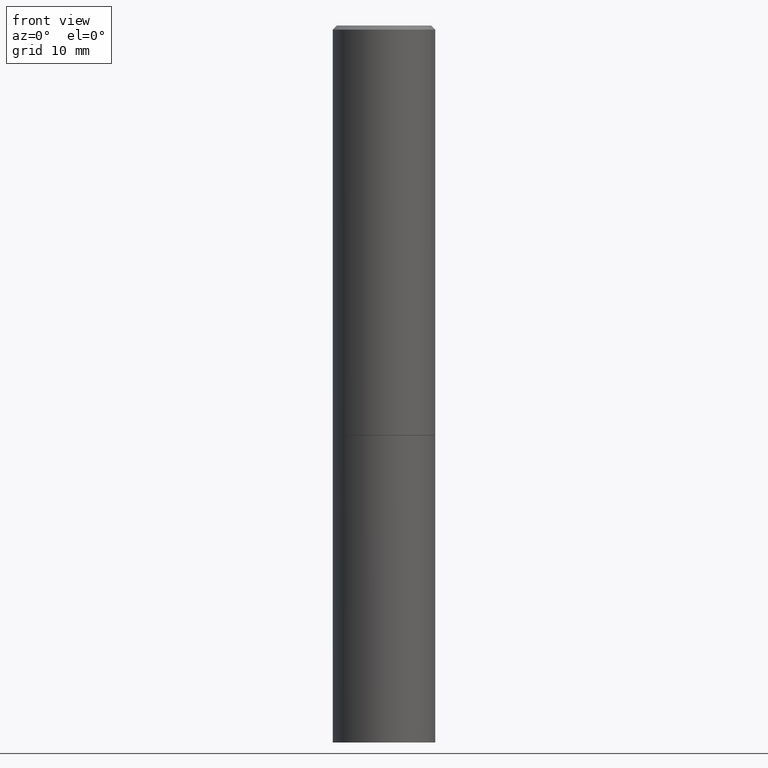
[diagram: clean part render]
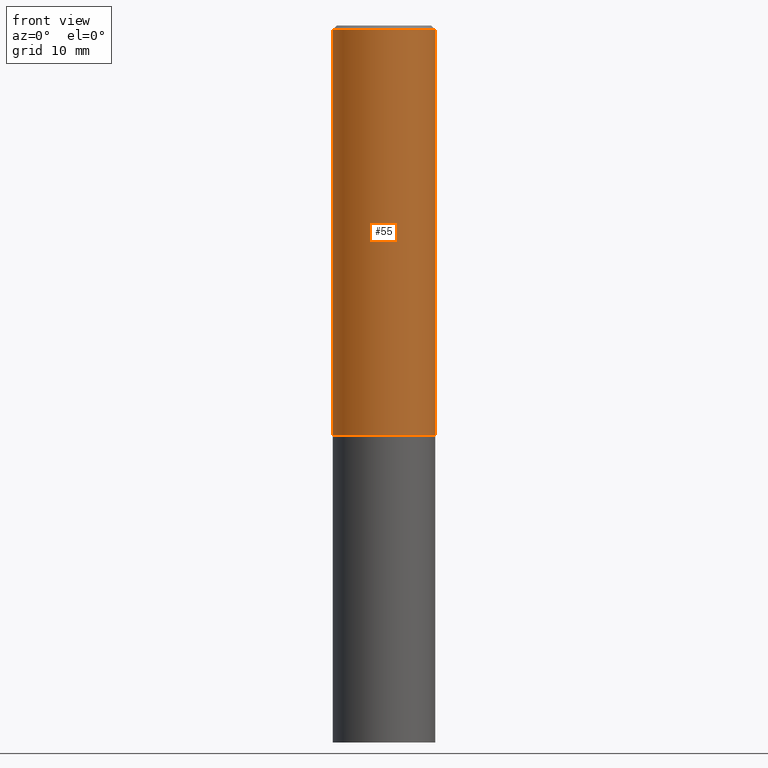
[diagram: same view with one face highlighted and labeled with its STEP entity id]
A machine part, front view. The second image highlights one B-rep face of the part: STEP entity #55.
In plain terms, the highlighted cylindrical surface (partial cylindrical patch) has radius 6.35 mm, axis along (-0, 0, 1).
Its self-contained STEP definition (entity closure, byte-faithful):
#6 = AXIS2_PLACEMENT_3D ( 'NONE', #157, #129, #299 ) ;
#17 = VERTEX_POINT ( 'NONE', #180 ) ;
#39 = DIRECTION ( 'NONE',  ( 1.000000000000000000, -6.982962677686266711E-15, 4.876176775795935793E-29 ) ) ;
#45 = EDGE_CURVE ( 'NONE', #136, #221, #117, .T. ) ;
#47 = ORIENTED_EDGE ( 'NONE', *, *, #105, .T. ) ;
#55 = ADVANCED_FACE ( 'NONE', ( #340 ), #88, .T. ) ;
#68 = VECTOR ( 'NONE', #259, 39.37007874015748143 ) ;
#78 = DIRECTION ( 'NONE',  ( -2.445468806185136877E-29, 3.491481338843145188E-15, 1.000000000000000000 ) ) ;
#81 = AXIS2_PLACEMENT_3D ( 'NONE', #284, #278, #229 ) ;
#88 = CYLINDRICAL_SURFACE ( 'NONE', #264, 0.2499999999999998890 ) ;
#101 = LINE ( 'NONE', #223, #319 ) ;
#105 = EDGE_CURVE ( 'NONE', #17, #136, #336, .T. ) ;
#107 = ORIENTED_EDGE ( 'NONE', *, *, #251, .F. ) ;
#117 = LINE ( 'NONE', #296, #68 ) ;
#129 = DIRECTION ( 'NONE',  ( -2.445468806185136597E-29, 3.491481338843145583E-15, 1.000000000000000000 ) ) ;
#136 = VERTEX_POINT ( 'NONE', #271 ) ;
#157 = CARTESIAN_POINT ( 'NONE',  ( 4.888492143564087591E-29, -6.979471196347447369E-15, -1.998999999999999888 ) ) ;
#170 = EDGE_CURVE ( 'NONE', #17, #356, #101, .T. ) ;
#180 = CARTESIAN_POINT ( 'NONE',  ( -0.2500000000000000000, -1.748293572161903489E-15, -1.998999999999999888 ) ) ;
#185 = EDGE_LOOP ( 'NONE', ( #305, #47, #309, #107 ) ) ;
#200 = DIRECTION ( 'NONE',  ( -2.445468806185136597E-29, 3.491481338843145583E-15, 1.000000000000000000 ) ) ;
#221 = VERTEX_POINT ( 'NONE', #334 ) ;
#223 = CARTESIAN_POINT ( 'NONE',  ( -0.2499999999999998890, 1.776356839400249676E-15, -1.229733772563726025E-29 ) ) ;
#229 = DIRECTION ( 'NONE',  ( 1.000000000000000000, -6.982962677686266711E-15, 0.000000000000000000 ) ) ;
#235 = CIRCLE ( 'NONE', #81, 0.2499999999999998057 ) ;
#251 = EDGE_CURVE ( 'NONE', #356, #221, #235, .T. ) ;
#259 = DIRECTION ( 'NONE',  ( -2.445468806185136877E-29, 3.491481338843145188E-15, 1.000000000000000000 ) ) ;
#264 = AXIS2_PLACEMENT_3D ( 'NONE', #297, #200, #39 ) ;
#271 = CARTESIAN_POINT ( 'NONE',  ( 0.2500000000000000000, -8.725211865769014047E-15, -1.998999999999999888 ) ) ;
#278 = DIRECTION ( 'NONE',  ( -2.445468806185136597E-29, 3.491481338843145583E-15, 1.000000000000000000 ) ) ;
#284 = CARTESIAN_POINT ( 'NONE',  ( 4.890937612370287172E-31, -6.982962677686310098E-17, -0.02000000000000005593 ) ) ;
#296 = CARTESIAN_POINT ( 'NONE',  ( 0.2499999999999998890, -1.745740669421565889E-15, 1.219044193948983388E-29 ) ) ;
#297 = CARTESIAN_POINT ( 'NONE',  ( 0.000000000000000000, 0.000000000000000000, 0.000000000000000000 ) ) ;
#299 = DIRECTION ( 'NONE',  ( 1.000000000000000000, -6.982962677686266711E-15, 0.000000000000000000 ) ) ;
#305 = ORIENTED_EDGE ( 'NONE', *, *, #170, .F. ) ;
#309 = ORIENTED_EDGE ( 'NONE', *, *, #45, .T. ) ;
#319 = VECTOR ( 'NONE', #78, 39.37007874015748143 ) ;
#324 = CARTESIAN_POINT ( 'NONE',  ( -0.2499999999999998057, 1.675911042644702196E-15, -0.02000000000000005593 ) ) ;
#334 = CARTESIAN_POINT ( 'NONE',  ( 0.2499999999999998057, -1.784954126219744611E-15, -0.02000000000000005593 ) ) ;
#336 = CIRCLE ( 'NONE', #6, 0.2500000000000000000 ) ;
#340 = FACE_OUTER_BOUND ( 'NONE', #185, .T. ) ;
#356 = VERTEX_POINT ( 'NONE', #324 ) ;